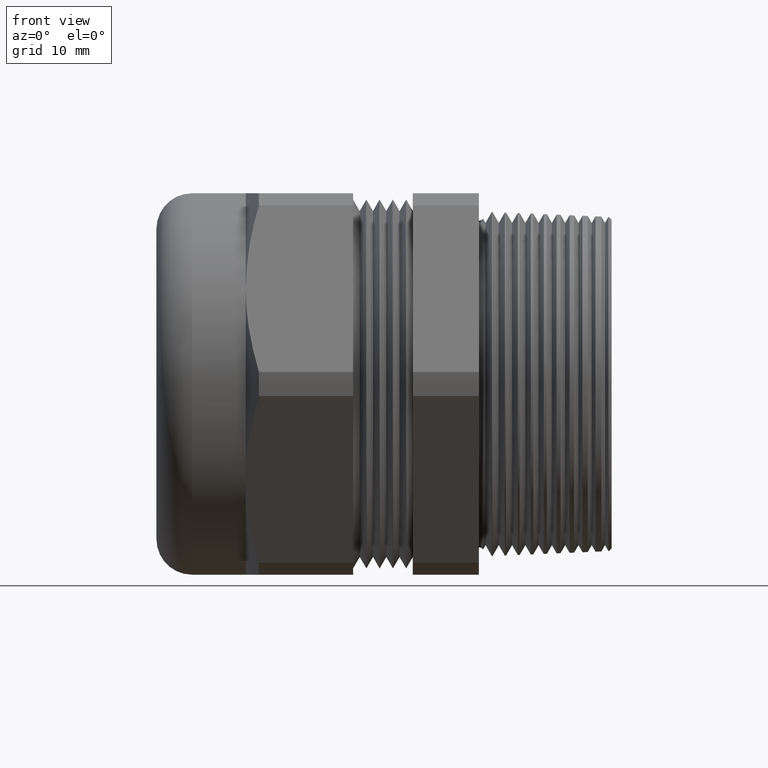
[diagram: clean part render]
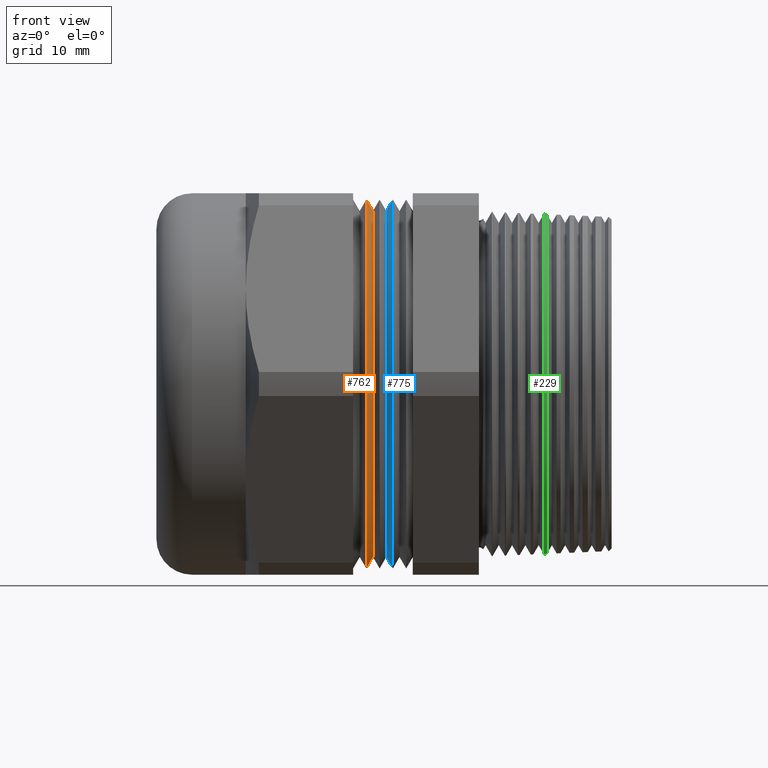
[diagram: same view with three faces highlighted in distinct colors, each labeled with its STEP entity id]
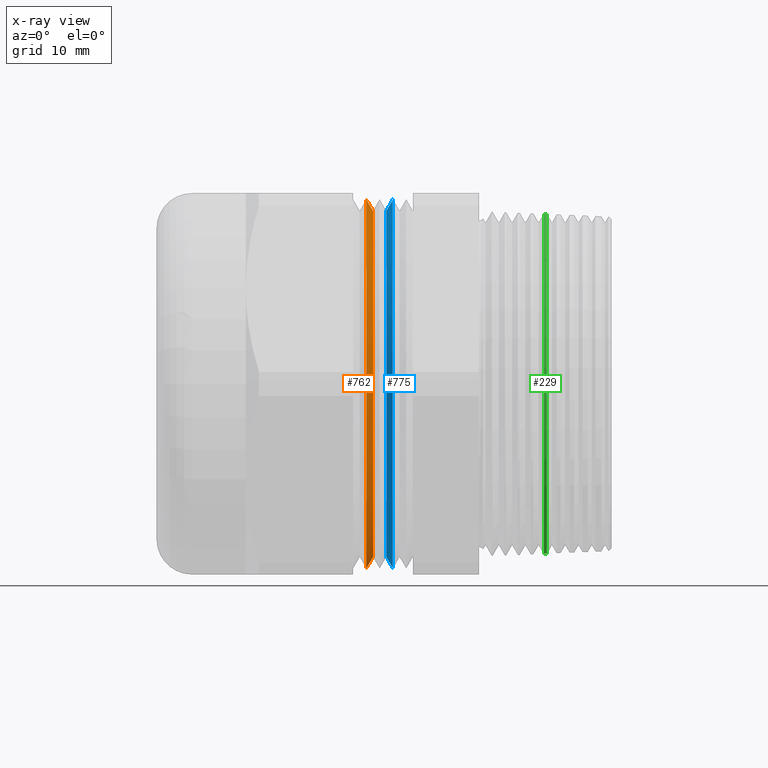
[diagram: x-ray of the same camera — body ghosted, the three highlighted faces saturated]
A machine part, front view with three faces highlighted in distinct colors.
The next image is the same camera in x-ray (body ghosted, the three faces saturated) — at least one of them is partly hidden behind the body in this view.
Their STEP definitions:

[orange] entity #762 — the highlighted conical surface has half-angle 60 deg.
#626 = EDGE_CURVE ( 'NONE', #1557, #1554, #2663, .T. ) ;
#725 = ORIENTED_EDGE ( 'NONE', *, *, #1559, .T. ) ;
#729 = ORIENTED_EDGE ( 'NONE', *, *, #1553, .F. ) ;
#761 = ORIENTED_EDGE ( 'NONE', *, *, #772, .F. ) ;
#762 = ADVANCED_FACE ( 'NONE', ( #3646 ), #3645, .T. ) ;
#763 = EDGE_LOOP ( 'NONE', ( #729, #761, #725, #774 ) ) ;
#772 = EDGE_CURVE ( 'NONE', #1551, #1550, #3628, .T. ) ;
#774 = ORIENTED_EDGE ( 'NONE', *, *, #626, .T. ) ;
#1550 = VERTEX_POINT ( 'NONE', #3891 ) ;
#1551 = VERTEX_POINT ( 'NONE', #3915 ) ;
#1553 = EDGE_CURVE ( 'NONE', #1550, #1554, #3914, .T. ) ;
#1554 = VERTEX_POINT ( 'NONE', #3910 ) ;
#1557 = VERTEX_POINT ( 'NONE', #3909 ) ;
#1559 = EDGE_CURVE ( 'NONE', #1551, #1557, #3882, .T. ) ;
#2659 = DIRECTION ( 'NONE',  ( 0.0000000000000000000, 0.0000000000000000000, -1.000000000000000000 ) ) ;
#2660 = DIRECTION ( 'NONE',  ( 1.000000000000000000, 0.0000000000000000000, 0.0000000000000000000 ) ) ;
#2661 = CARTESIAN_POINT ( 'NONE',  ( -0.5332500000000001100, 0.0000000000000000000, 0.0000000000000000000 ) ) ;
#2662 = AXIS2_PLACEMENT_3D ( 'NONE', #2661, #2660, #2659 ) ;
#2663 = CIRCLE ( 'NONE', #2662, 0.8744999999999999400 ) ;
#3625 = DIRECTION ( 'NONE',  ( 0.0000000000000000000, 0.0000000000000000000, -1.000000000000000000 ) ) ;
#3626 = DIRECTION ( 'NONE',  ( 1.000000000000000000, 0.0000000000000000000, 0.0000000000000000000 ) ) ;
#3627 = AXIS2_PLACEMENT_3D ( 'NONE', #3632, #3626, #3625 ) ;
#3628 = CIRCLE ( 'NONE', #3627, 0.8208064499999998500 ) ;
#3632 = CARTESIAN_POINT ( 'NONE',  ( -0.5022500144537539500, 0.0000000000000000000, 0.0000000000000000000 ) ) ;
#3641 = DIRECTION ( 'NONE',  ( 0.0000000000000000000, 0.0000000000000000000, 1.000000000000000000 ) ) ;
#3642 = DIRECTION ( 'NONE',  ( -1.000000000000000000, 0.0000000000000000000, 0.0000000000000000000 ) ) ;
#3643 = AXIS2_PLACEMENT_3D ( 'NONE', #3651, #3642, #3641 ) ;
#3645 = CONICAL_SURFACE ( 'NONE', #3643, 0.8744999999999999400, 1.047197551196604100 ) ;
#3646 = FACE_OUTER_BOUND ( 'NONE', #763, .T. ) ;
#3651 = CARTESIAN_POINT ( 'NONE',  ( -0.5332500000000001100, 0.0000000000000000000, 0.0000000000000000000 ) ) ;
#3879 = DIRECTION ( 'NONE',  ( -0.4999999999999945000, 0.0000000000000000000, 0.8660254037844418200 ) ) ;
#3880 = VECTOR ( 'NONE', #3879, 39.37007874015748100 ) ;
#3881 = CARTESIAN_POINT ( 'NONE',  ( -0.5332500000000001100, 0.0000000000000000000, 0.8744999999999999400 ) ) ;
#3882 = LINE ( 'NONE', #3881, #3880 ) ;
#3891 = CARTESIAN_POINT ( 'NONE',  ( -0.5022500144537539500, 0.0000000000000000000, -0.8208064499999998500 ) ) ;
#3909 = CARTESIAN_POINT ( 'NONE',  ( -0.5332500000000001100, 0.0000000000000000000, 0.8744999999999999400 ) ) ;
#3910 = CARTESIAN_POINT ( 'NONE',  ( -0.5332500000000001100, 1.070953625854360300E-016, -0.8744999999999999400 ) ) ;
#3911 = DIRECTION ( 'NONE',  ( -0.4999999999999945000, 1.060575238724910700E-016, -0.8660254037844418200 ) ) ;
#3912 = VECTOR ( 'NONE', #3911, 39.37007874015748100 ) ;
#3913 = CARTESIAN_POINT ( 'NONE',  ( -0.5332500000000001100, 1.070953625854360300E-016, -0.8744999999999999400 ) ) ;
#3914 = LINE ( 'NONE', #3913, #3912 ) ;
#3915 = CARTESIAN_POINT ( 'NONE',  ( -0.5022500144537539500, 1.038075808783181100E-016, 0.8208064499999998500 ) ) ;

[blue] entity #775 — the highlighted conical surface has half-angle 60 deg.
#372 = EDGE_CURVE ( 'NONE', #1369, #1372, #2143, .T. ) ;
#730 = ORIENTED_EDGE ( 'NONE', *, *, #1374, .T. ) ;
#731 = ORIENTED_EDGE ( 'NONE', *, *, #372, .F. ) ;
#742 = ORIENTED_EDGE ( 'NONE', *, *, #743, .T. ) ;
#743 = EDGE_CURVE ( 'NONE', #1526, #1525, #3592, .T. ) ;
#764 = EDGE_LOOP ( 'NONE', ( #765, #742, #730, #731 ) ) ;
#765 = ORIENTED_EDGE ( 'NONE', *, *, #1368, .F. ) ;
#775 = ADVANCED_FACE ( 'NONE', ( #3624 ), #3623, .T. ) ;
#1368 = EDGE_CURVE ( 'NONE', #1526, #1369, #4084, .T. ) ;
#1369 = VERTEX_POINT ( 'NONE', #4077 ) ;
#1372 = VERTEX_POINT ( 'NONE', #4118 ) ;
#1374 = EDGE_CURVE ( 'NONE', #1525, #1372, #4117, .T. ) ;
#1525 = VERTEX_POINT ( 'NONE', #3839 ) ;
#1526 = VERTEX_POINT ( 'NONE', #3838 ) ;
#2139 = DIRECTION ( 'NONE',  ( 0.0000000000000000000, 0.0000000000000000000, -1.000000000000000000 ) ) ;
#2140 = DIRECTION ( 'NONE',  ( 1.000000000000000000, 0.0000000000000000000, 0.0000000000000000000 ) ) ;
#2141 = CARTESIAN_POINT ( 'NONE',  ( -0.4082500289075070600, 0.0000000000000000000, 0.0000000000000000000 ) ) ;
#2142 = AXIS2_PLACEMENT_3D ( 'NONE', #2141, #2140, #2139 ) ;
#2143 = CIRCLE ( 'NONE', #2142, 0.8744999999999999400 ) ;
#3588 = DIRECTION ( 'NONE',  ( 0.0000000000000000000, 0.0000000000000000000, -1.000000000000000000 ) ) ;
#3589 = DIRECTION ( 'NONE',  ( 1.000000000000000000, 0.0000000000000000000, 0.0000000000000000000 ) ) ;
#3590 = CARTESIAN_POINT ( 'NONE',  ( -0.4392500144537539500, 0.0000000000000000000, 0.0000000000000000000 ) ) ;
#3591 = AXIS2_PLACEMENT_3D ( 'NONE', #3590, #3589, #3588 ) ;
#3592 = CIRCLE ( 'NONE', #3591, 0.8208064499999998500 ) ;
#3618 = DIRECTION ( 'NONE',  ( 0.0000000000000000000, 0.0000000000000000000, -1.000000000000000000 ) ) ;
#3619 = DIRECTION ( 'NONE',  ( 1.000000000000000000, 0.0000000000000000000, 0.0000000000000000000 ) ) ;
#3620 = CARTESIAN_POINT ( 'NONE',  ( -0.4392500144537539500, 0.0000000000000000000, 0.0000000000000000000 ) ) ;
#3621 = AXIS2_PLACEMENT_3D ( 'NONE', #3620, #3619, #3618 ) ;
#3623 = CONICAL_SURFACE ( 'NONE', #3621, 0.8208064499999998500, 1.047197551196594500 ) ;
#3624 = FACE_OUTER_BOUND ( 'NONE', #764, .T. ) ;
#3838 = CARTESIAN_POINT ( 'NONE',  ( -0.4392500144537539500, 1.038075808783181100E-016, 0.8208064499999998500 ) ) ;
#3839 = CARTESIAN_POINT ( 'NONE',  ( -0.4392500144537539500, 0.0000000000000000000, -0.8208064499999998500 ) ) ;
#4077 = CARTESIAN_POINT ( 'NONE',  ( -0.4082500289075070600, 0.0000000000000000000, 0.8744999999999999400 ) ) ;
#4078 = DIRECTION ( 'NONE',  ( 0.5000000000000027800, 1.060575238724904800E-016, 0.8660254037844369300 ) ) ;
#4079 = VECTOR ( 'NONE', #4078, 39.37007874015748100 ) ;
#4080 = CARTESIAN_POINT ( 'NONE',  ( -0.4392500144537539500, 1.005197991712001900E-016, 0.8208064499999998500 ) ) ;
#4084 = LINE ( 'NONE', #4080, #4079 ) ;
#4114 = DIRECTION ( 'NONE',  ( 0.5000000000000027800, 0.0000000000000000000, -0.8660254037844369300 ) ) ;
#4115 = VECTOR ( 'NONE', #4114, 39.37007874015748100 ) ;
#4116 = CARTESIAN_POINT ( 'NONE',  ( -0.4392500144537539500, 0.0000000000000000000, -0.8208064499999998500 ) ) ;
#4117 = LINE ( 'NONE', #4116, #4115 ) ;
#4118 = CARTESIAN_POINT ( 'NONE',  ( -0.4082500289075070600, 1.070953625854360300E-016, -0.8744999999999999400 ) ) ;

[green] entity #229 — the highlighted conical surface has half-angle 2.5 deg.
#144 = EDGE_CURVE ( 'NONE', #1171, #1186, #1689, .T. ) ;
#172 = EDGE_CURVE ( 'NONE', #1172, #1185, #1798, .T. ) ;
#229 = ADVANCED_FACE ( 'NONE', ( #1922 ), #1921, .T. ) ;
#231 = EDGE_LOOP ( 'NONE', ( #530, #295, #552, #553 ) ) ;
#295 = ORIENTED_EDGE ( 'NONE', *, *, #529, .F. ) ;
#523 = EDGE_CURVE ( 'NONE', #1186, #1185, #2520, .T. ) ;
#529 = EDGE_CURVE ( 'NONE', #1172, #1171, #2448, .T. ) ;
#530 = ORIENTED_EDGE ( 'NONE', *, *, #144, .F. ) ;
#552 = ORIENTED_EDGE ( 'NONE', *, *, #172, .T. ) ;
#553 = ORIENTED_EDGE ( 'NONE', *, *, #523, .F. ) ;
#1171 = VERTEX_POINT ( 'NONE', #3305 ) ;
#1172 = VERTEX_POINT ( 'NONE', #3306 ) ;
#1185 = VERTEX_POINT ( 'NONE', #3442 ) ;
#1186 = VERTEX_POINT ( 'NONE', #3441 ) ;
#1638 = DIRECTION ( 'NONE',  ( -0.9990482215818576900, 5.341834311772756400E-018, -0.04361938736533627100 ) ) ;
#1639 = VECTOR ( 'NONE', #1638, 39.37007874015748100 ) ;
#1688 = CARTESIAN_POINT ( 'NONE',  ( 0.6299999999999997800, 9.705247578930107000E-017, -0.7924936059676371800 ) ) ;
#1689 = LINE ( 'NONE', #1688, #1639 ) ;
#1795 = DIRECTION ( 'NONE',  ( -0.9990482215818576900, 0.0000000000000000000, 0.04361938736533627100 ) ) ;
#1796 = VECTOR ( 'NONE', #1795, 39.37007874015748100 ) ;
#1797 = CARTESIAN_POINT ( 'NONE',  ( 0.6299999999999997800, 0.0000000000000000000, 0.7924936059676371800 ) ) ;
#1798 = LINE ( 'NONE', #1797, #1796 ) ;
#1916 = DIRECTION ( 'NONE',  ( 0.0000000000000000000, 0.0000000000000000000, 1.000000000000000000 ) ) ;
#1917 = DIRECTION ( 'NONE',  ( -1.000000000000000000, 0.0000000000000000000, 0.0000000000000000000 ) ) ;
#1918 = CARTESIAN_POINT ( 'NONE',  ( 0.6299999999999997800, 0.0000000000000000000, 0.0000000000000000000 ) ) ;
#1919 = AXIS2_PLACEMENT_3D ( 'NONE', #1918, #1917, #1916 ) ;
#1921 = CONICAL_SURFACE ( 'NONE', #1919, 0.7924936059676371800, 0.04363323129985850800 ) ;
#1922 = FACE_OUTER_BOUND ( 'NONE', #231, .T. ) ;
#2444 = DIRECTION ( 'NONE',  ( 0.0000000000000000000, 0.0000000000000000000, 1.000000000000000000 ) ) ;
#2445 = DIRECTION ( 'NONE',  ( 1.000000000000000000, 0.0000000000000000000, 0.0000000000000000000 ) ) ;
#2446 = CARTESIAN_POINT ( 'NONE',  ( 0.3231457472021414000, 0.0000000000000000000, 0.0000000000000000000 ) ) ;
#2447 = AXIS2_PLACEMENT_3D ( 'NONE', #2446, #2445, #2444 ) ;
#2448 = CIRCLE ( 'NONE', #2447, 0.8058911519802788300 ) ;
#2516 = DIRECTION ( 'NONE',  ( 0.0000000000000000000, 0.0000000000000000000, -1.000000000000000000 ) ) ;
#2517 = DIRECTION ( 'NONE',  ( -1.000000000000000000, 0.0000000000000000000, 0.0000000000000000000 ) ) ;
#2518 = CARTESIAN_POINT ( 'NONE',  ( 0.3079023571020302300, 0.0000000000000000000, 0.0000000000000000000 ) ) ;
#2519 = AXIS2_PLACEMENT_3D ( 'NONE', #2518, #2517, #2516 ) ;
#2520 = CIRCLE ( 'NONE', #2519, 0.8065566927651719500 ) ;
#3305 = CARTESIAN_POINT ( 'NONE',  ( 0.3231457472021414000, 9.873395459297823700E-017, -0.8058911519802788300 ) ) ;
#3306 = CARTESIAN_POINT ( 'NONE',  ( 0.3231457472021414000, 0.0000000000000000000, 0.8058911519802788300 ) ) ;
#3441 = CARTESIAN_POINT ( 'NONE',  ( 0.3079023571020302300, 9.877470721257429300E-017, -0.8065566927651719500 ) ) ;
#3442 = CARTESIAN_POINT ( 'NONE',  ( 0.3079023571020302300, 0.0000000000000000000, 0.8065566927651719500 ) ) ;